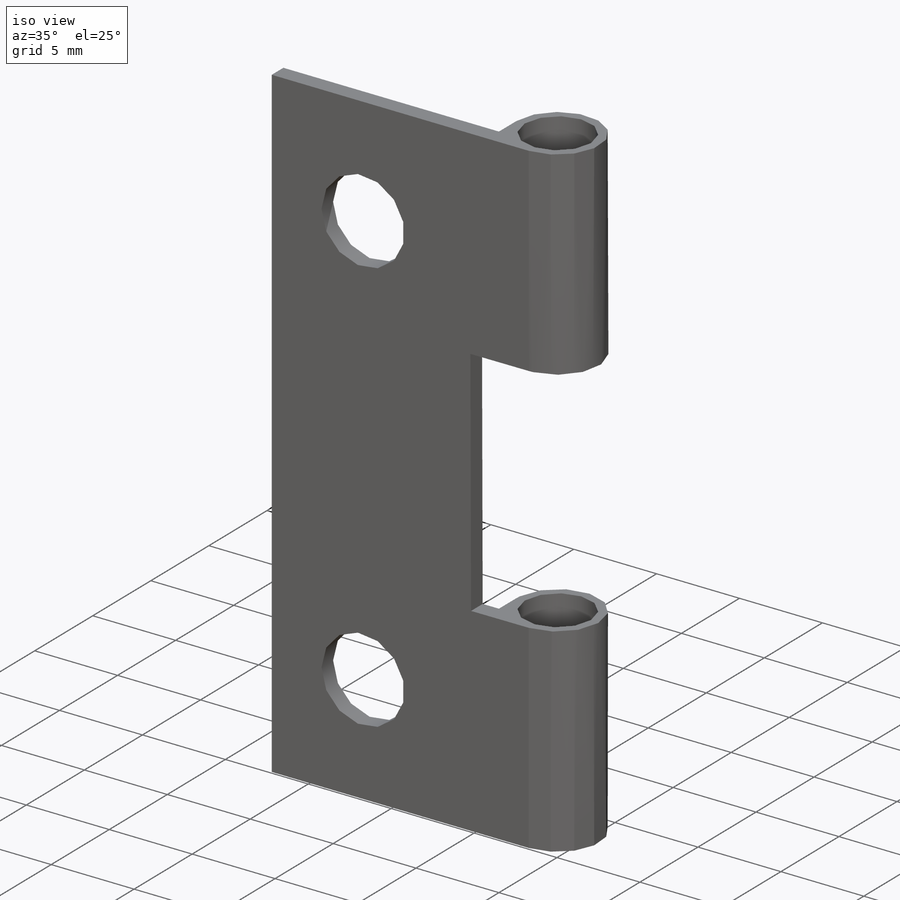
[diagram: iso view]
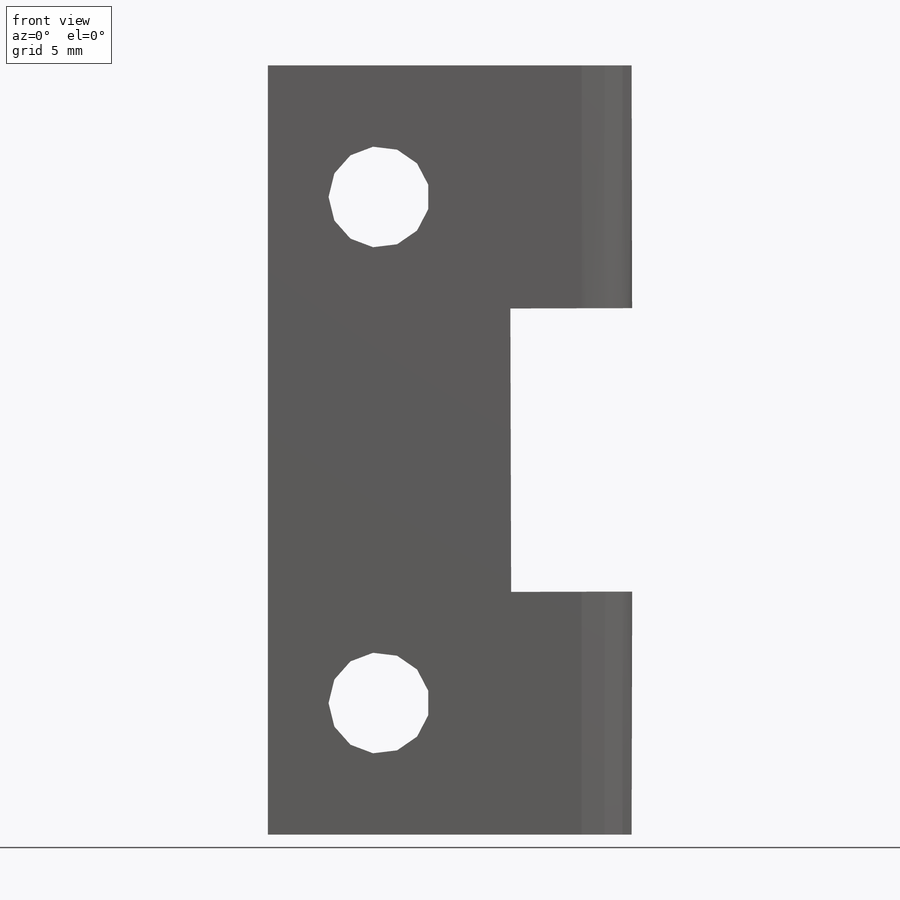
[diagram: front view]
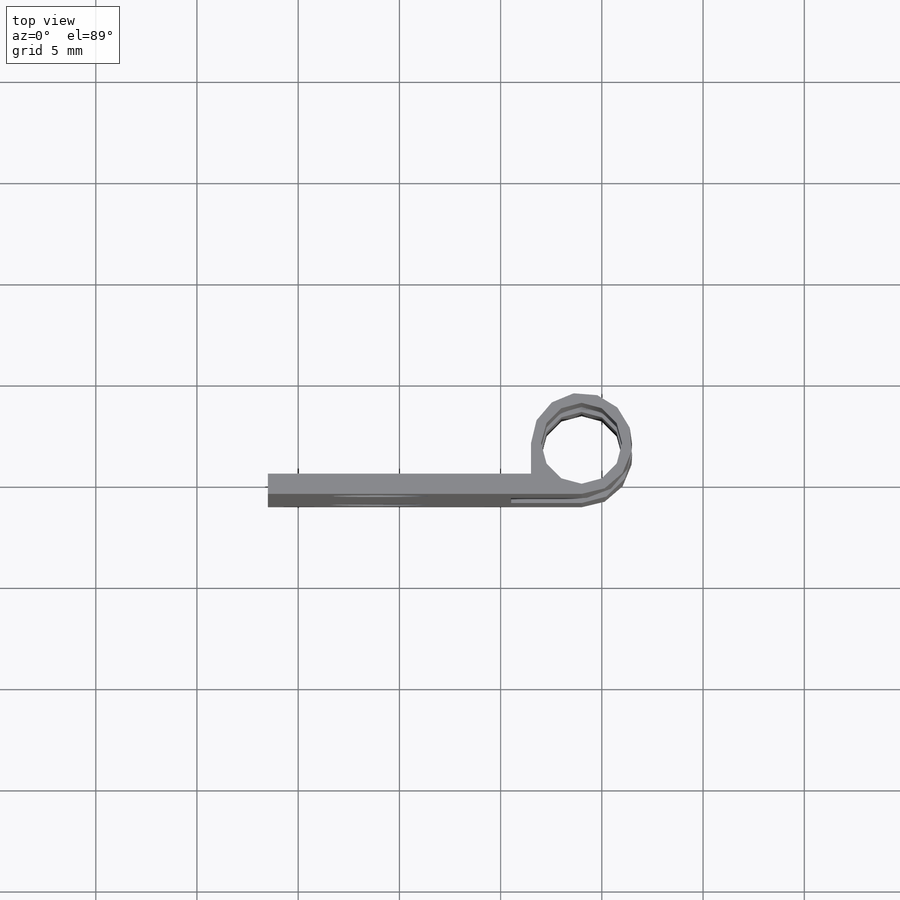
[diagram: top view]
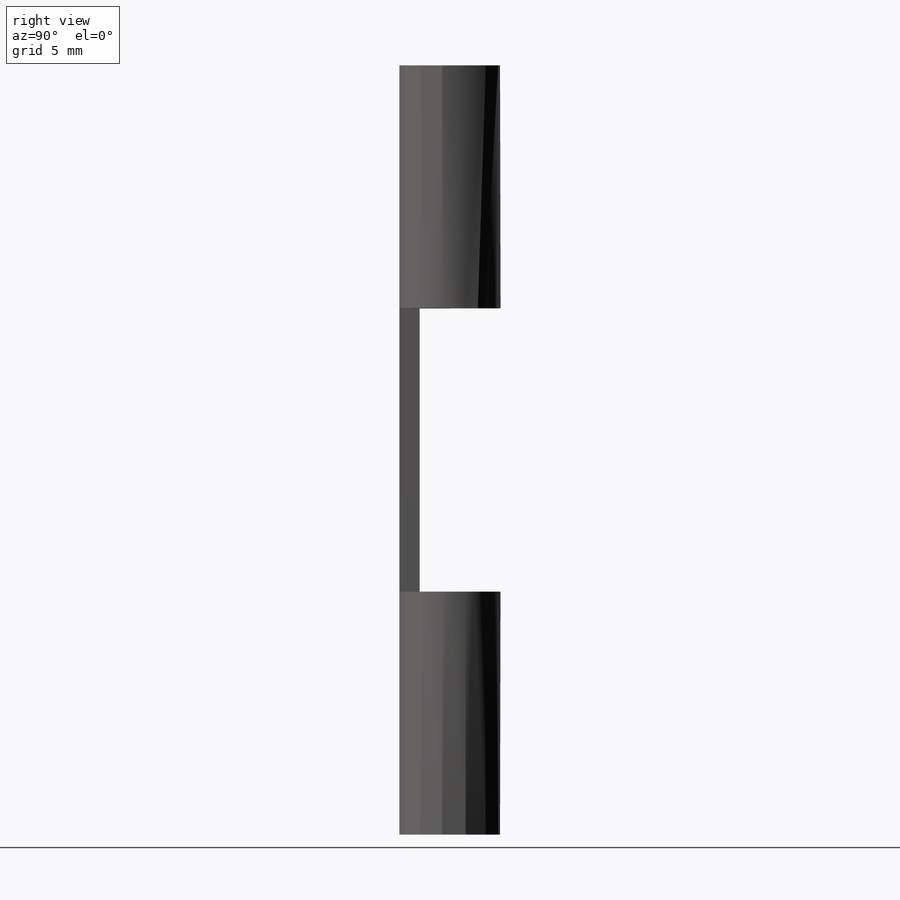
[diagram: right view]
SOLIDWORKS PART (.sldprt)
format: sldprt  version: not decoded by parser v0  size: 195,072 bytes
history: native  units: mm
features: sketch x4, plane x3, extrude x2, cut_extrude x2, material x1 (+10 scaffold rows collapsed)
feature tree (22):
  scaffold x10  (default folders/planes/origin — collapsed)
  material  "材质 <未指定>"
  plane  "前视"
  plane  "上视"
  plane  "右视"
  sketch  "草图1"  dims[D1=38.0mm]
  extrude  "凸台-拉伸1"  Depth=1mm
  sketch  "草图2"  dims[D1=5.0mm]
  extrude  "凸台-拉伸2"  Depth=38mm
  sketch  "草图3"  dims[D1=14.0mm]
  cut_extrude  "切除-拉伸1"  Depth=10mm
  sketch  "草图4"  dims[c1.D1=6.5mm c1.D2=~8.367486mm c2.D2=90.0deg c3.D2=5.5mm]
  cut_extrude  "切除-拉伸2"  Depth=2mm
decode coverage: 8 of 8 modeling features carry decoded parameters
note: ~ marks probable driven/reference dimensions
note: suppression state not decoded; provenance and decode notes live in map.json
